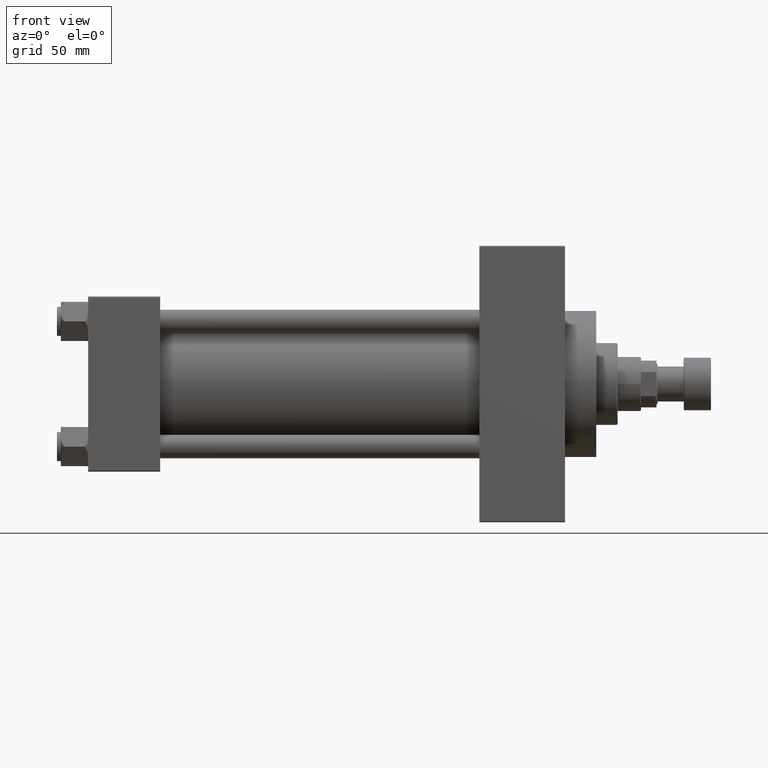
[diagram: clean part render]
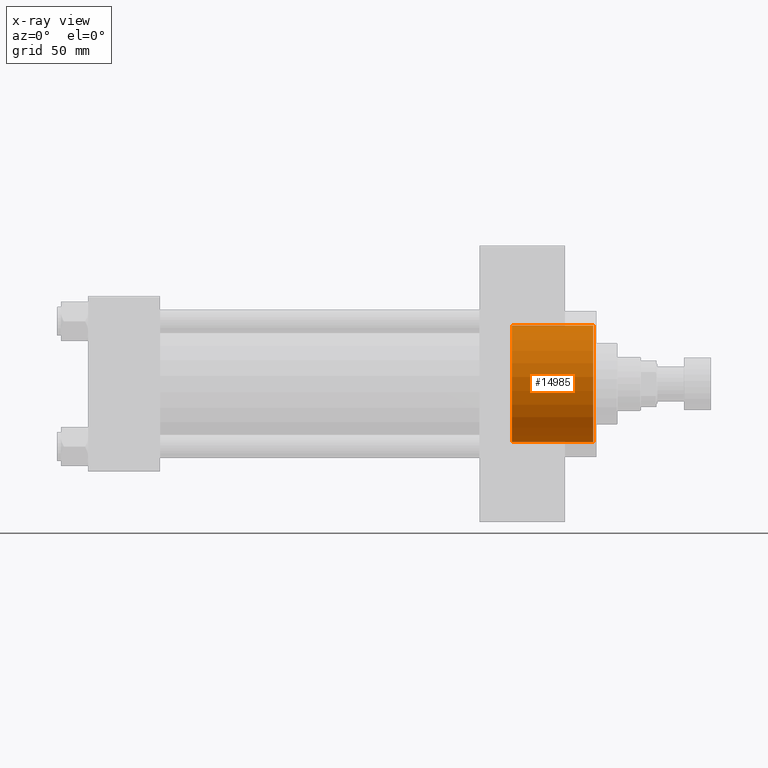
[diagram: x-ray — body ghosted, one internal face saturated and labeled with its STEP entity id]
A machine part, front view, then the same camera in x-ray: the body is ghosted and one INTERNAL B-rep face — a face not visible from any outside direction — is saturated and labeled: STEP entity #14985.
In plain terms, the highlighted cylindrical surface (partial cylindrical patch) has radius 30 mm, axis along (1, 0, 0).
Its self-contained STEP definition (entity closure, byte-faithful):
#1661 = LINE ( 'NONE', #31683, #5643 ) ;
#1786 = EDGE_LOOP ( 'NONE', ( #25823, #10193, #34378, #11338 ) ) ;
#1979 = CARTESIAN_POINT ( 'NONE',  ( 217.7400000000000091, 3.673940397442059178E-15, 30.00000000000000000 ) ) ;
#2568 = CARTESIAN_POINT ( 'NONE',  ( 217.7400000000000091, 0.000000000000000000, -30.00000000000000000 ) ) ;
#4820 = CARTESIAN_POINT ( 'NONE',  ( 217.7400000000000091, 0.000000000000000000, 0.000000000000000000 ) ) ;
#4973 = DIRECTION ( 'NONE',  ( 1.000000000000000000, 0.000000000000000000, 0.000000000000000000 ) ) ;
#5055 = DIRECTION ( 'NONE',  ( 1.000000000000000000, -0.000000000000000000, -0.000000000000000000 ) ) ;
#5643 = VECTOR ( 'NONE', #16448, 1000.000000000000000 ) ;
#7829 = VERTEX_POINT ( 'NONE', #1979 ) ;
#8690 = FACE_OUTER_BOUND ( 'NONE', #1786, .T. ) ;
#8765 = LINE ( 'NONE', #31035, #24540 ) ;
#9161 = CYLINDRICAL_SURFACE ( 'NONE', #16771, 30.00000000000000000 ) ;
#10193 = ORIENTED_EDGE ( 'NONE', *, *, #33419, .T. ) ;
#11338 = ORIENTED_EDGE ( 'NONE', *, *, #46592, .F. ) ;
#12881 = DIRECTION ( 'NONE',  ( 1.000000000000000000, -0.000000000000000000, -0.000000000000000000 ) ) ;
#14527 = CARTESIAN_POINT ( 'NONE',  ( 259.4999999999999432, 3.673940397442059178E-15, 30.00000000000000000 ) ) ;
#14985 = ADVANCED_FACE ( 'NONE', ( #8690 ), #9161, .F. ) ;
#15794 = CARTESIAN_POINT ( 'NONE',  ( 259.4999999999999432, 0.000000000000000000, -30.00000000000000000 ) ) ;
#16373 = DIRECTION ( 'NONE',  ( 1.000000000000000000, 0.000000000000000000, 0.000000000000000000 ) ) ;
#16448 = DIRECTION ( 'NONE',  ( 1.000000000000000000, -0.000000000000000000, -0.000000000000000000 ) ) ;
#16771 = AXIS2_PLACEMENT_3D ( 'NONE', #4820, #5055, #42094 ) ;
#18705 = CIRCLE ( 'NONE', #21007, 30.00000000000000000 ) ;
#19024 = CARTESIAN_POINT ( 'NONE',  ( 259.4999999999999432, 0.000000000000000000, 0.000000000000000000 ) ) ;
#21007 = AXIS2_PLACEMENT_3D ( 'NONE', #45185, #16373, #31129 ) ;
#22408 = DIRECTION ( 'NONE',  ( 0.000000000000000000, 0.000000000000000000, -1.000000000000000000 ) ) ;
#24028 = EDGE_CURVE ( 'NONE', #26904, #44311, #40126, .T. ) ;
#24540 = VECTOR ( 'NONE', #12881, 1000.000000000000000 ) ;
#25823 = ORIENTED_EDGE ( 'NONE', *, *, #30175, .F. ) ;
#26904 = VERTEX_POINT ( 'NONE', #14527 ) ;
#28543 = AXIS2_PLACEMENT_3D ( 'NONE', #19024, #4973, #22408 ) ;
#30175 = EDGE_CURVE ( 'NONE', #7829, #35713, #18705, .T. ) ;
#31035 = CARTESIAN_POINT ( 'NONE',  ( 217.7400000000000091, 0.000000000000000000, -30.00000000000000000 ) ) ;
#31129 = DIRECTION ( 'NONE',  ( 0.000000000000000000, 0.000000000000000000, -1.000000000000000000 ) ) ;
#31683 = CARTESIAN_POINT ( 'NONE',  ( 217.7400000000000091, 3.673940397442059178E-15, 30.00000000000000000 ) ) ;
#33419 = EDGE_CURVE ( 'NONE', #7829, #26904, #1661, .T. ) ;
#34378 = ORIENTED_EDGE ( 'NONE', *, *, #24028, .T. ) ;
#35713 = VERTEX_POINT ( 'NONE', #2568 ) ;
#40126 = CIRCLE ( 'NONE', #28543, 30.00000000000000000 ) ;
#42094 = DIRECTION ( 'NONE',  ( 0.000000000000000000, 0.000000000000000000, -1.000000000000000000 ) ) ;
#44311 = VERTEX_POINT ( 'NONE', #15794 ) ;
#45185 = CARTESIAN_POINT ( 'NONE',  ( 217.7400000000000091, 0.000000000000000000, 0.000000000000000000 ) ) ;
#46592 = EDGE_CURVE ( 'NONE', #35713, #44311, #8765, .T. ) ;